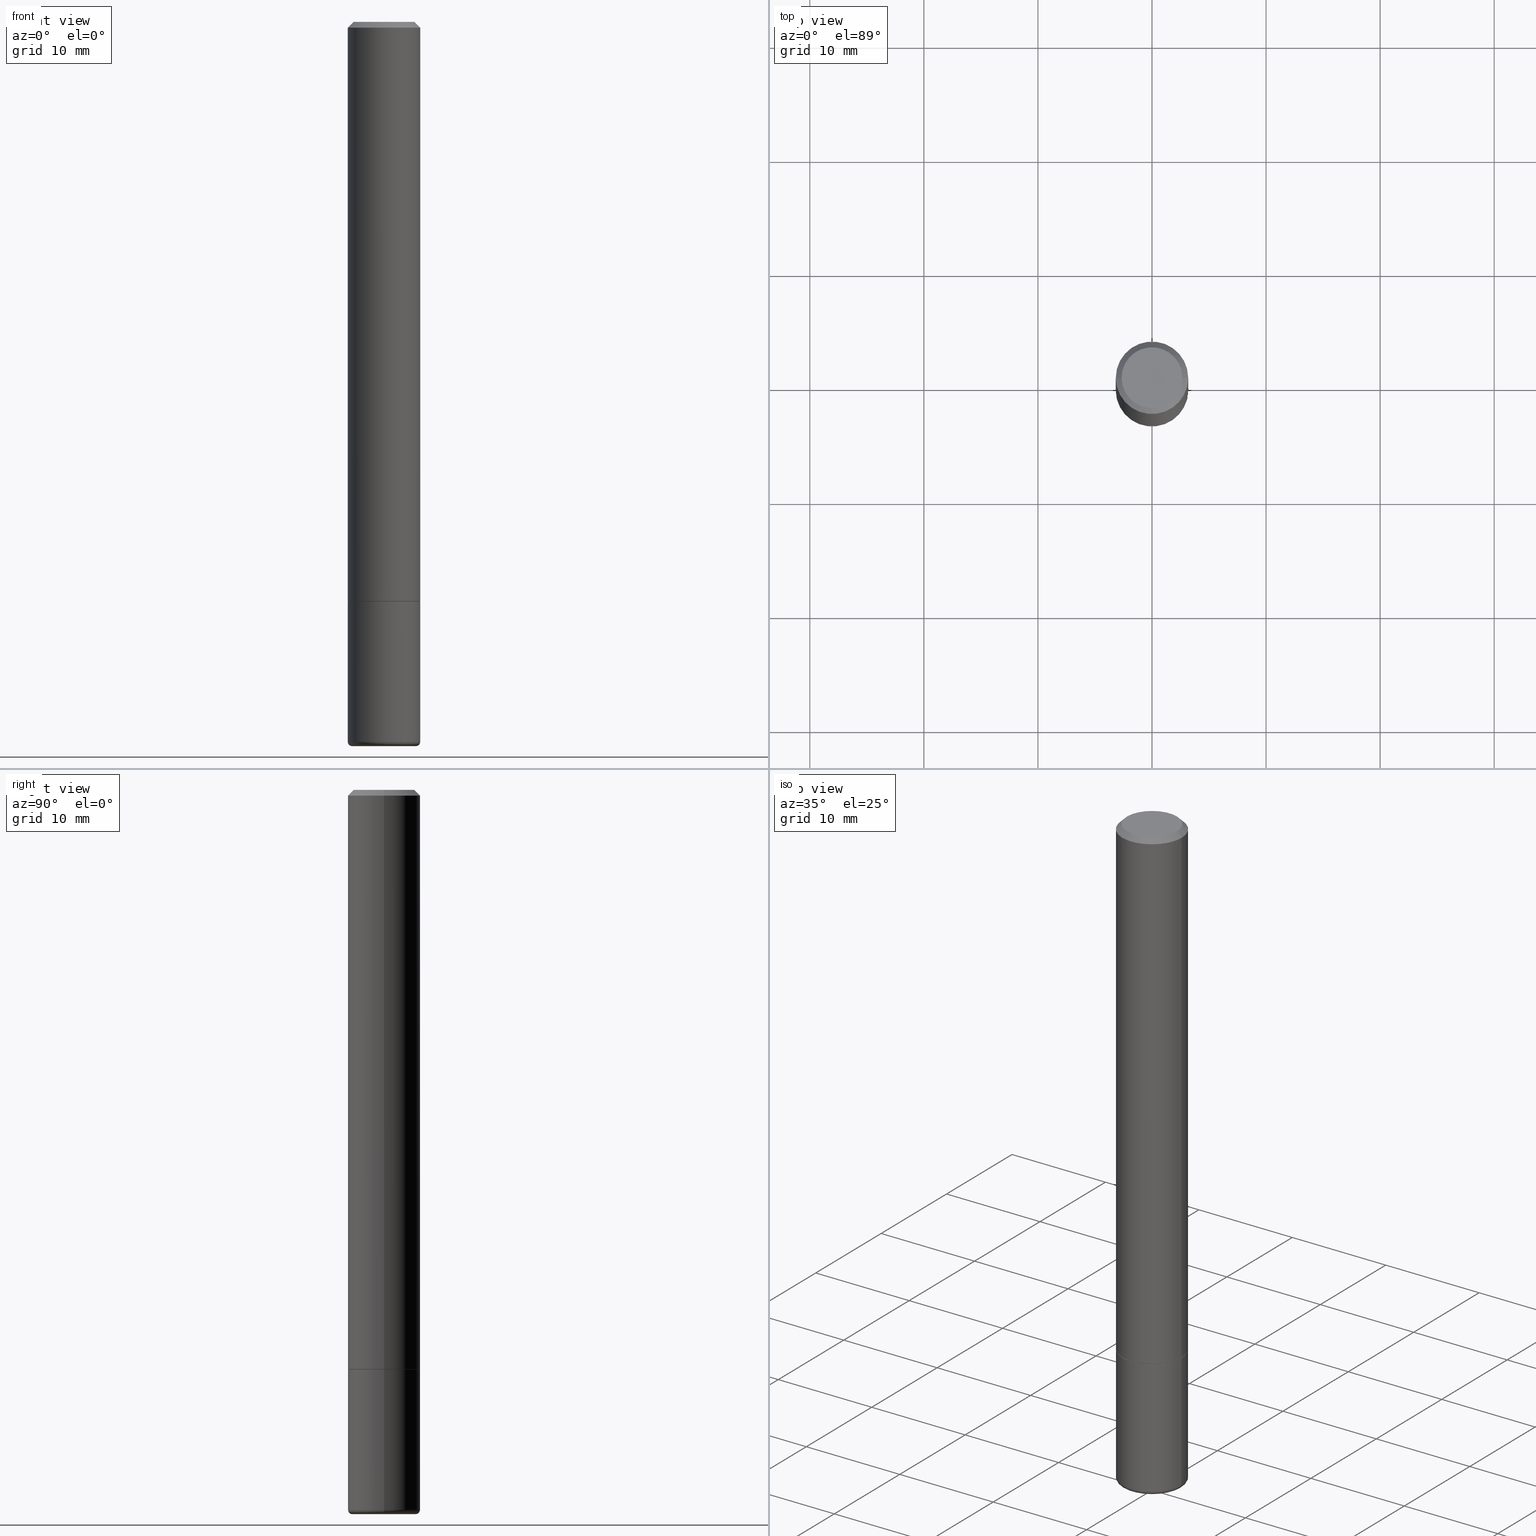
[diagram: canonical four-view strip — front | top / right | iso, engineering-drawing reading convention]
A machine part, canonical four-view strip (front | top / right | iso — engineering-drawing reading convention). The complete STEP part file that produces these views, byte-faithful:
ISO-10303-21;
HEADER;
FILE_DESCRIPTION (( 'STEP AP203' ),
    '1' );
FILE_NAME ('37012.STEP',
    '2024-03-01T18:40:47',
    ( '' ),
    ( '' ),
    'SwSTEP 2.0',
    'SolidWorks 2023',
    '' );
FILE_SCHEMA (( 'CONFIG_CONTROL_DESIGN' ));
ENDSEC;

DATA;
#1 = CALENDAR_DATE ( 2024, 1, 3 ) ;
#2 = FACE_OUTER_BOUND ( 'NONE', #391, .T. ) ;
#3 = VERTEX_POINT ( 'NONE', #236 ) ;
#4 = EDGE_CURVE ( 'NONE', #111, #93, #13, .T. ) ;
#5 = CARTESIAN_POINT ( 'NONE',  ( -0.1100000000000000006, -7.867629522548422746E-15, -2.500000000000000000 ) ) ;
#6 = CIRCLE ( 'NONE', #165, 0.01500000000000012955 ) ;
#7 = AXIS2_PLACEMENT_3D ( 'NONE', #327, #154, #319 ) ;
#8 = FACE_OUTER_BOUND ( 'NONE', #328, .T. ) ;
#9 = ORIENTED_EDGE ( 'NONE', *, *, #354, .F. ) ;
#10 = EDGE_CURVE ( 'NONE', #132, #158, #53, .T. ) ;
#11 = FACE_OUTER_BOUND ( 'NONE', #38, .T. ) ;
#12 = ORIENTED_EDGE ( 'NONE', *, *, #4, .T. ) ;
#13 = CIRCLE ( 'NONE', #52, 0.1250000000000000000 ) ;
#14 = LOCAL_TIME ( 13, 40, 47.00000000000000000, #275 ) ;
#15 = CIRCLE ( 'NONE', #63, 0.1250000000000000000 ) ;
#16 = DATE_AND_TIME ( #306, #215 ) ;
#17 = ORIENTED_EDGE ( 'NONE', *, *, #179, .F. ) ;
#18 = APPLICATION_PROTOCOL_DEFINITION ( 'international standard', 'config_control_design', 1994, #366 ) ;
#19 = CARTESIAN_POINT ( 'NONE',  ( 0.1100000000000000006, -9.496829241653354912E-15, -2.500000000000000000 ) ) ;
#20 = DIRECTION ( 'NONE',  ( 2.438088387897960049E-29, -3.491481338843145188E-15, -1.000000000000000000 ) ) ;
#21 = AXIS2_PLACEMENT_3D ( 'NONE', #312, #279, #208 ) ;
#22 = DIRECTION ( 'NONE',  ( 7.105427357601001859E-15, 1.000000000000000000, -3.491481338843145583E-15 ) ) ;
#23 = MECHANICAL_CONTEXT ( 'NONE', #366, 'mechanical' ) ;
#24 = DIRECTION ( 'NONE',  ( -1.000000000000000000, 6.982962677686265922E-15, -4.876176775795935793E-29 ) ) ;
#25 = ORIENTED_EDGE ( 'NONE', *, *, #43, .T. ) ;
#26 = DATE_TIME_ROLE ( 'creation_date' ) ;
#27 = CARTESIAN_POINT ( 'NONE',  ( 4.890937612370273194E-29, -6.982962677686291165E-15, -2.000000000000000000 ) ) ;
#28 = CONICAL_SURFACE ( 'NONE', #321, 0.1249999999999999861, 0.7853981633974471688 ) ;
#29 = ORIENTED_EDGE ( 'NONE', *, *, #4, .F. ) ;
#30 = DIRECTION ( 'NONE',  ( -2.445468806185136597E-29, 3.491481338843145583E-15, 1.000000000000000000 ) ) ;
#31 = EDGE_LOOP ( 'NONE', ( #96, #385, #168, #266 ) ) ;
#32 = LINE ( 'NONE', #163, #126 ) ;
#33 = DIRECTION ( 'NONE',  ( -2.445468806185136877E-29, 3.491481338843145188E-15, 1.000000000000000000 ) ) ;
#34 = VECTOR ( 'NONE', #372, 39.37007874015748143 ) ;
#35 = LOCAL_TIME ( 13, 40, 47.00000000000000000, #142 ) ;
#36 = DIRECTION ( 'NONE',  ( 1.000000000000000000, -6.982962677686264344E-15, 0.000000000000000000 ) ) ;
#37 = DESIGN_CONTEXT ( 'detailed design', #298, 'design' ) ;
#38 = EDGE_LOOP ( 'NONE', ( #25, #364, #9, #17 ) ) ;
#39 = CALENDAR_DATE ( 2024, 1, 3 ) ;
#40 = EDGE_LOOP ( 'NONE', ( #136, #141, #177, #188 ) ) ;
#41 = CIRCLE ( 'NONE', #156, 0.1049999999999999406 ) ;
#42 = DIRECTION ( 'NONE',  ( -2.445468806185136597E-29, 3.491481338843145583E-15, 1.000000000000000000 ) ) ;
#43 = EDGE_CURVE ( 'NONE', #393, #330, #198, .T. ) ;
#44 = ORIENTED_EDGE ( 'NONE', *, *, #127, .F. ) ;
#45 =( LENGTH_UNIT ( ) NAMED_UNIT ( * ) SI_UNIT ( $, .METRE. ) );
#46 = ORIENTED_EDGE ( 'NONE', *, *, #10, .F. ) ;
#47 = AXIS2_PLACEMENT_3D ( 'NONE', #379, #408, #339 ) ;
#48 = PRODUCT_RELATED_PRODUCT_CATEGORY ( 'detail', '', ( #311 ) ) ;
#49 = FACE_OUTER_BOUND ( 'NONE', #143, .T. ) ;
#50 = DIRECTION ( 'NONE',  ( -2.445468806185136597E-29, 3.491481338843145583E-15, 1.000000000000000000 ) ) ;
#51 = LINE ( 'NONE', #374, #34 ) ;
#52 = AXIS2_PLACEMENT_3D ( 'NONE', #77, #342, #149 ) ;
#53 = CIRCLE ( 'NONE', #268, 0.1049999999999999406 ) ;
#54 = AXIS2_PLACEMENT_3D ( 'NONE', #204, #304, #36 ) ;
#55 = CARTESIAN_POINT ( 'NONE',  ( -1.670162262936351711E-45, 2.384549072608715520E-31, 6.829619984160658046E-17 ) ) ;
#56 = CARTESIAN_POINT ( 'NONE',  ( 0.1049999999999999406, -8.238720831321571714E-16, 6.829619984161202853E-17 ) ) ;
#57 = PERSON_AND_ORGANIZATION_ROLE ( 'creator' ) ;
#58 = CARTESIAN_POINT ( 'NONE',  ( 4.890937612370273194E-29, -6.982962677686291165E-15, -2.000000000000000000 ) ) ;
#59 = ORIENTED_EDGE ( 'NONE', *, *, #326, .F. ) ;
#60 = PERSON_AND_ORGANIZATION ( #171, #371 ) ;
#61 = ADVANCED_FACE ( 'NONE', ( #150 ), #182, .T. ) ;
#62 = PLANE ( 'NONE',  #315 ) ;
#63 = AXIS2_PLACEMENT_3D ( 'NONE', #58, #381, #265 ) ;
#64 = VERTEX_POINT ( 'NONE', #19 ) ;
#65 = LINE ( 'NONE', #358, #333 ) ;
#66 = EDGE_CURVE ( 'NONE', #192, #297, #413, .T. ) ;
#67 = LINE ( 'NONE', #187, #380 ) ;
#68 = CC_DESIGN_PERSON_AND_ORGANIZATION_ASSIGNMENT ( #412, #416, ( #145 ) ) ;
#69 = DIRECTION ( 'NONE',  ( -0.7071067811865466846, 2.468850131082247989E-15, -0.7071067811865483499 ) ) ;
#70 = ORIENTED_EDGE ( 'NONE', *, *, #66, .T. ) ;
#71 = AXIS2_PLACEMENT_3D ( 'NONE', #131, #295, #160 ) ;
#72 = DIRECTION ( 'NONE',  ( 2.445468806185136597E-29, -3.491481338843145583E-15, -1.000000000000000000 ) ) ;
#73 = VERTEX_POINT ( 'NONE', #276 ) ;
#74 = VERTEX_POINT ( 'NONE', #313 ) ;
#75 = EDGE_CURVE ( 'NONE', #308, #73, #82, .T. ) ;
#76 = DIRECTION ( 'NONE',  ( 1.000000000000000000, -6.982962677686265922E-15, 4.876176775795935793E-29 ) ) ;
#77 = CARTESIAN_POINT ( 'NONE',  ( 4.890937612370273194E-29, -6.982962677686291165E-15, -2.000000000000000000 ) ) ;
#78 = AXIS2_PLACEMENT_3D ( 'NONE', #283, #167, #24 ) ;
#79 = EDGE_CURVE ( 'NONE', #73, #308, #88, .T. ) ;
#80 = CALENDAR_DATE ( 2024, 1, 3 ) ;
#81 = CARTESIAN_POINT ( 'NONE',  ( 0.000000000000000000, 0.000000000000000000, 0.000000000000000000 ) ) ;
#82 = CIRCLE ( 'NONE', #377, 0.1250000000000000000 ) ;
#83 = AXIS2_PLACEMENT_3D ( 'NONE', #146, #288, #116 ) ;
#84 = FACE_OUTER_BOUND ( 'NONE', #151, .T. ) ;
#85 = DIRECTION ( 'NONE',  ( -2.445468806185136597E-29, 3.491481338843145583E-15, 1.000000000000000000 ) ) ;
#86 = FACE_OUTER_BOUND ( 'NONE', #205, .T. ) ;
#87 = PERSON_AND_ORGANIZATION ( #171, #371 ) ;
#88 = CIRCLE ( 'NONE', #140, 0.1250000000000000000 ) ;
#89 = VECTOR ( 'NONE', #337, 39.37007874015748143 ) ;
#90 = LINE ( 'NONE', #214, #270 ) ;
#91 = LINE ( 'NONE', #124, #89 ) ;
#92 = FACE_OUTER_BOUND ( 'NONE', #258, .T. ) ;
#93 = VERTEX_POINT ( 'NONE', #370 ) ;
#94 = CC_DESIGN_DATE_AND_TIME_ASSIGNMENT ( #346, #26, ( #249 ) ) ;
#95 = PLANE ( 'NONE',  #78 ) ;
#96 = ORIENTED_EDGE ( 'NONE', *, *, #79, .T. ) ;
#97 = CARTESIAN_POINT ( 'NONE',  ( 4.890937612370273194E-29, -6.982962677686291165E-15, -2.000000000000000000 ) ) ;
#98 = APPROVAL_PERSON_ORGANIZATION ( #194, #332, #137 ) ;
#99 = ORIENTED_EDGE ( 'NONE', *, *, #305, .T. ) ;
#100 = DIRECTION ( 'NONE',  ( 1.000000000000000000, -6.982962677686270655E-15, 0.000000000000000000 ) ) ;
#101 = ORIENTED_EDGE ( 'NONE', *, *, #341, .T. ) ;
#102 = DATE_TIME_ROLE ( 'classification_date' ) ;
#103 = DIRECTION ( 'NONE',  ( -0.7071067811866078578, 7.493145998870571886E-15, 0.7071067811864871766 ) ) ;
#104 = EDGE_LOOP ( 'NONE', ( #273, #46, #99, #70 ) ) ;
#105 = FACE_OUTER_BOUND ( 'NONE', #104, .T. ) ;
#106 = AXIS2_PLACEMENT_3D ( 'NONE', #402, #235, #76 ) ;
#107 = ORIENTED_EDGE ( 'NONE', *, *, #365, .F. ) ;
#108 = CARTESIAN_POINT ( 'NONE',  ( 4.890937612370279289E-31, -6.982962677686299005E-17, -0.02000000000000002470 ) ) ;
#109 = ORIENTED_EDGE ( 'NONE', *, *, #148, .F. ) ;
#110 = EDGE_CURVE ( 'NONE', #324, #308, #6, .T. ) ;
#111 = VERTEX_POINT ( 'NONE', #251 ) ;
#112 = APPROVAL_PERSON_ORGANIZATION ( #60, #389, #282 ) ;
#113 = PRODUCT_DEFINITION_FORMATION_WITH_SPECIFIED_SOURCE ( 'ANY', '', #311, .NOT_KNOWN. ) ;
#114 = CARTESIAN_POINT ( 'NONE',  ( 0.000000000000000000, 0.000000000000000000, 0.000000000000000000 ) ) ;
#115 = DIRECTION ( 'NONE',  ( -2.445468806185136597E-29, 3.491481338843145583E-15, 1.000000000000000000 ) ) ;
#116 = DIRECTION ( 'NONE',  ( 1.000000000000000000, 0.000000000000000000, 0.000000000000000000 ) ) ;
#117 = CARTESIAN_POINT ( 'NONE',  ( 4.890937612370273194E-29, -6.982962677686291165E-15, -2.000000000000000000 ) ) ;
#118 = CLOSED_SHELL ( 'NONE', ( #61, #259, #303, #121, #247, #242 ) ) ;
#119 = VECTOR ( 'NONE', #103, 39.37007874015748143 ) ;
#120 = PLANE ( 'NONE',  #400 ) ;
#121 = ADVANCED_FACE ( 'NONE', ( #86 ), #212, .T. ) ;
#122 = DIRECTION ( 'NONE',  ( 1.000000000000000000, -6.982962677686270655E-15, 0.000000000000000000 ) ) ;
#123 = CARTESIAN_POINT ( 'NONE',  ( 7.332110811570575313E-16, 0.1049999999999999406, -3.324574406577267327E-16 ) ) ;
#124 = CARTESIAN_POINT ( 'NONE',  ( -0.1250000000000001110, 8.881784197001260212E-16, -6.148668862818637832E-30 ) ) ;
#125 = CLOSED_SHELL ( 'NONE', ( #262, #373, #269, #378, #164, #169, #368, #144 ) ) ;
#126 = VECTOR ( 'NONE', #69, 39.37007874015748143 ) ;
#127 = EDGE_CURVE ( 'NONE', #3, #74, #300, .T. ) ;
#128 = DIRECTION ( 'NONE',  ( -2.445468806185136597E-29, 3.491481338843145583E-15, 1.000000000000000000 ) ) ;
#129 = FACE_OUTER_BOUND ( 'NONE', #394, .T. ) ;
#130 = ORIENTED_EDGE ( 'NONE', *, *, #326, .T. ) ;
#131 = CARTESIAN_POINT ( 'NONE',  ( 6.076989983370064174E-29, -8.676331127025216680E-15, -2.484999999999999876 ) ) ;
#132 = VERTEX_POINT ( 'NONE', #244 ) ;
#133 = CARTESIAN_POINT ( 'NONE',  ( 6.113672015462842613E-29, -8.728703347107864943E-15, -2.500000000000000000 ) ) ;
#134 = CONICAL_SURFACE ( 'NONE', #343, 0.1249999999999999861, 0.7853981633974471688 ) ;
#135 = DIRECTION ( 'NONE',  ( -2.445468806185136597E-29, 3.491481338843145583E-15, 1.000000000000000000 ) ) ;
#136 = ORIENTED_EDGE ( 'NONE', *, *, #110, .F. ) ;
#137 = APPROVAL_ROLE ( '' ) ;
#138 = EDGE_CURVE ( 'NONE', #308, #111, #90, .T. ) ;
#139 = ORIENTED_EDGE ( 'NONE', *, *, #127, .T. ) ;
#140 = AXIS2_PLACEMENT_3D ( 'NONE', #316, #115, #122 ) ;
#141 = ORIENTED_EDGE ( 'NONE', *, *, #227, .T. ) ;
#142 = COORDINATED_UNIVERSAL_TIME_OFFSET ( 5, 0, .BEHIND. ) ;
#143 = EDGE_LOOP ( 'NONE', ( #261, #139, #228, #107 ) ) ;
#144 = ADVANCED_FACE ( 'NONE', ( #277 ), #120, .F. ) ;
#145 = SECURITY_CLASSIFICATION ( '', '', #335 ) ;
#146 = CARTESIAN_POINT ( 'NONE',  ( 0.000000000000000000, 0.000000000000000000, 0.000000000000000000 ) ) ;
#147 = CARTESIAN_POINT ( 'NONE',  ( 0.000000000000000000, 0.000000000000000000, 0.000000000000000000 ) ) ;
#148 = EDGE_CURVE ( 'NONE', #74, #393, #51, .T. ) ;
#149 = DIRECTION ( 'NONE',  ( 1.000000000000000000, -6.982962677686270655E-15, 0.000000000000000000 ) ) ;
#150 = FACE_OUTER_BOUND ( 'NONE', #31, .T. ) ;
#151 = EDGE_LOOP ( 'NONE', ( #415, #287, #336, #173 ) ) ;
#152 = PERSON_AND_ORGANIZATION_ROLE ( 'design_supplier' ) ;
#153 = CC_DESIGN_PERSON_AND_ORGANIZATION_ASSIGNMENT ( #159, #57, ( #249 ) ) ;
#154 = DIRECTION ( 'NONE',  ( -2.445468806185136597E-29, 3.491481338843145583E-15, 1.000000000000000000 ) ) ;
#155 = APPROVAL_STATUS ( 'not_yet_approved' ) ;
#156 = AXIS2_PLACEMENT_3D ( 'NONE', #200, #30, #255 ) ;
#157 = FACE_OUTER_BOUND ( 'NONE', #40, .T. ) ;
#158 = VERTEX_POINT ( 'NONE', #56 ) ;
#159 = PERSON_AND_ORGANIZATION ( #171, #371 ) ;
#160 = DIRECTION ( 'NONE',  ( 1.000000000000000000, -6.982962677686262766E-15, 4.883557194083111780E-29 ) ) ;
#161 = ORIENTED_EDGE ( 'NONE', *, *, #222, .T. ) ;
#162 = SHAPE_DEFINITION_REPRESENTATION ( #246, #213 ) ;
#163 = CARTESIAN_POINT ( 'NONE',  ( -0.1249999999999999861, 8.030407079339202378E-16, -0.02000000000000002470 ) ) ;
#164 = ADVANCED_FACE ( 'NONE', ( #84 ), #317, .T. ) ;
#165 = AXIS2_PLACEMENT_3D ( 'NONE', #250, #22, #176 ) ;
#166 = LOCAL_TIME ( 13, 40, 47.00000000000000000, #189 ) ;
#167 = DIRECTION ( 'NONE',  ( 2.438088387897960049E-29, -3.491481338843145188E-15, -1.000000000000000000 ) ) ;
#168 = ORIENTED_EDGE ( 'NONE', *, *, #231, .F. ) ;
#169 = ADVANCED_FACE ( 'NONE', ( #49 ), #338, .T. ) ;
#170 = CC_DESIGN_APPROVAL ( #345, ( #249 ) ) ;
#171 = PERSON ( 'UNSPECIFIED', 'UNSPECIFIED', 'UNSPECIFIED', ('UNSPECIFIED'), ('UNSPECIFIED'), ('UNSPECIFIED') ) ;
#172 = COORDINATED_UNIVERSAL_TIME_OFFSET ( 5, 0, .BEHIND. ) ;
#173 = ORIENTED_EDGE ( 'NONE', *, *, #66, .F. ) ;
#174 = AXIS2_PLACEMENT_3D ( 'NONE', #133, #390, #100 ) ;
#175 = APPROVAL_ROLE ( '' ) ;
#176 = DIRECTION ( 'NONE',  ( -1.000000000000000000, 7.105427357600994759E-15, 0.000000000000000000 ) ) ;
#177 = ORIENTED_EDGE ( 'NONE', *, *, #301, .T. ) ;
#178 = DIRECTION ( 'NONE',  ( 1.000000000000000000, -6.982962677686266711E-15, 4.876176775795935793E-29 ) ) ;
#179 = EDGE_CURVE ( 'NONE', #393, #297, #67, .T. ) ;
#180 = AXIS2_PLACEMENT_3D ( 'NONE', #147, #310, #178 ) ;
#181 = AXIS2_PLACEMENT_3D ( 'NONE', #350, #264, #218 ) ;
#182 = CYLINDRICAL_SURFACE ( 'NONE', #180, 0.1250000000000000000 ) ;
#183 = EDGE_CURVE ( 'NONE', #74, #3, #190, .T. ) ;
#184 =( NAMED_UNIT ( * ) PLANE_ANGLE_UNIT ( ) SI_UNIT ( $, .RADIAN. ) );
#185 = DIRECTION ( 'NONE',  ( -1.000000000000000000, 6.982962677686265922E-15, -4.876176775795935793E-29 ) ) ;
#186 =( CONVERSION_BASED_UNIT ( 'INCH', #309 ) LENGTH_UNIT ( ) NAMED_UNIT ( #230 ) );
#187 = CARTESIAN_POINT ( 'NONE',  ( 0.1250000000000001110, -8.728703347107841277E-16, 6.095220969744924646E-30 ) ) ;
#188 = ORIENTED_EDGE ( 'NONE', *, *, #75, .F. ) ;
#189 = COORDINATED_UNIVERSAL_TIME_OFFSET ( 5, 0, .BEHIND. ) ;
#190 = CIRCLE ( 'NONE', #199, 0.1239999999999999991 ) ;
#191 = CARTESIAN_POINT ( 'NONE',  ( -0.1249999999999999861, 8.030407079339202378E-16, -0.02000000000000002470 ) ) ;
#192 = VERTEX_POINT ( 'NONE', #191 ) ;
#193 = DIRECTION ( 'NONE',  ( -2.445468806185136877E-29, 3.491481338843145188E-15, 1.000000000000000000 ) ) ;
#194 = PERSON_AND_ORGANIZATION ( #171, #371 ) ;
#195 = DIRECTION ( 'NONE',  ( 1.000000000000000000, -6.982962677686262766E-15, 0.000000000000000000 ) ) ;
#196 = UNCERTAINTY_MEASURE_WITH_UNIT (LENGTH_MEASURE( 1.000000000000000082E-05 ), #186, 'distance_accuracy_value', 'NONE');
#197 = ORIENTED_EDGE ( 'NONE', *, *, #301, .F. ) ;
#198 = CIRCLE ( 'NONE', #21, 0.1250000000000002498 ) ;
#199 = AXIS2_PLACEMENT_3D ( 'NONE', #27, #128, #195 ) ;
#200 = CARTESIAN_POINT ( 'NONE',  ( -1.670162262936351711E-45, 2.384549072608715520E-31, 6.829619984160658046E-17 ) ) ;
#201 = ORIENTED_EDGE ( 'NONE', *, *, #227, .F. ) ;
#202 = DIRECTION ( 'NONE',  ( 1.000000000000000000, -6.982962677686266711E-15, 0.000000000000000000 ) ) ;
#203 = AXIS2_PLACEMENT_3D ( 'NONE', #248, #85, #323 ) ;
#204 = CARTESIAN_POINT ( 'NONE',  ( 4.888492143564087591E-29, -6.979471196347447369E-15, -1.998999999999999888 ) ) ;
#205 = EDGE_LOOP ( 'NONE', ( #281, #388, #399, #29 ) ) ;
#206 = PERSON_AND_ORGANIZATION_ROLE ( 'creator' ) ;
#207 = APPLICATION_PROTOCOL_DEFINITION ( 'international standard', 'config_control_design', 1994, #298 ) ;
#208 = DIRECTION ( 'NONE',  ( 1.000000000000000000, -6.982962677686264344E-15, 0.000000000000000000 ) ) ;
#209 = CIRCLE ( 'NONE', #353, 0.1249999999999999861 ) ;
#210 = EDGE_CURVE ( 'NONE', #73, #93, #65, .T. ) ;
#211 = DIRECTION ( 'NONE',  ( -2.445468806185136597E-29, 3.491481338843145583E-15, 1.000000000000000000 ) ) ;
#212 = CYLINDRICAL_SURFACE ( 'NONE', #47, 0.1250000000000000000 ) ;
#213 = ADVANCED_BREP_SHAPE_REPRESENTATION ( '37012', ( #299, #302, #83 ), #285 ) ;
#214 = CARTESIAN_POINT ( 'NONE',  ( -0.1250000000000000000, 8.881784197001252323E-16, -6.148668862818632227E-30 ) ) ;
#215 = LOCAL_TIME ( 13, 40, 47.00000000000000000, #172 ) ;
#216 = COORDINATED_UNIVERSAL_TIME_OFFSET ( 5, 0, .BEHIND. ) ;
#217 = DIRECTION ( 'NONE',  ( 1.000000000000000000, -6.982962677686265922E-15, 4.881622206245865394E-29 ) ) ;
#218 = DIRECTION ( 'NONE',  ( 1.000000000000000000, -6.982962677686262766E-15, 0.000000000000000000 ) ) ;
#219 = ORIENTED_EDGE ( 'NONE', *, *, #183, .T. ) ;
#220 = APPROVAL_STATUS ( 'not_yet_approved' ) ;
#221 = CARTESIAN_POINT ( 'NONE',  ( 0.1249999999999999861, -9.273918764983043491E-16, -0.02000000000000002470 ) ) ;
#222 = EDGE_CURVE ( 'NONE', #158, #132, #41, .T. ) ;
#223 = LOCAL_TIME ( 13, 40, 47.00000000000000000, #216 ) ;
#224 = DIRECTION ( 'NONE',  ( 2.438088387897960049E-29, -3.491481338843145188E-15, -1.000000000000000000 ) ) ;
#225 = ORIENTED_EDGE ( 'NONE', *, *, #183, .F. ) ;
#226 = CARTESIAN_POINT ( 'NONE',  ( -0.1250000000000002498, -2.636471991862024185E-15, -1.998999999999999888 ) ) ;
#227 = EDGE_CURVE ( 'NONE', #324, #64, #263, .T. ) ;
#228 = ORIENTED_EDGE ( 'NONE', *, *, #148, .T. ) ;
#229 = CARTESIAN_POINT ( 'NONE',  ( 0.1100000000000000006, -9.444457021570706649E-15, -2.484999999999999876 ) ) ;
#230 = DIMENSIONAL_EXPONENTS ( 1.000000000000000000, 0.000000000000000000, 0.000000000000000000, 0.000000000000000000, 0.000000000000000000, 0.000000000000000000, 0.000000000000000000 ) ;
#231 = EDGE_CURVE ( 'NONE', #93, #111, #15, .T. ) ;
#232 = ORIENTED_EDGE ( 'NONE', *, *, #305, .F. ) ;
#233 = AXIS2_PLACEMENT_3D ( 'NONE', #229, #347, #359 ) ;
#234 = CARTESIAN_POINT ( 'NONE',  ( 4.890937612370279289E-31, -6.982962677686299005E-17, -0.02000000000000002470 ) ) ;
#235 = DIRECTION ( 'NONE',  ( -2.438088387897960049E-29, 3.491481338843145188E-15, 1.000000000000000000 ) ) ;
#236 = CARTESIAN_POINT ( 'NONE',  ( -0.1239999999999999991, -6.096591230995543750E-15, -2.000000000000000000 ) ) ;
#237 = CC_DESIGN_PERSON_AND_ORGANIZATION_ASSIGNMENT ( #256, #152, ( #113 ) ) ;
#238 = AXIS2_PLACEMENT_3D ( 'NONE', #375, #403, #410 ) ;
#239 = CIRCLE ( 'NONE', #174, 0.1100000000000000006 ) ;
#240 = DIRECTION ( 'NONE',  ( -2.445468806185136597E-29, 3.491481338843145583E-15, 1.000000000000000000 ) ) ;
#241 = DIRECTION ( 'NONE',  ( 1.000000000000000000, -6.982962677686270655E-15, 0.000000000000000000 ) ) ;
#242 = ADVANCED_FACE ( 'NONE', ( #2 ), #95, .T. ) ;
#243 = DATE_AND_TIME ( #404, #14 ) ;
#244 = CARTESIAN_POINT ( 'NONE',  ( -0.1049999999999999406, 7.681258945454890818E-16, 6.829619984160132961E-17 ) ) ;
#245 = AXIS2_PLACEMENT_3D ( 'NONE', #114, #240, #296 ) ;
#246 = PRODUCT_DEFINITION_SHAPE ( 'NONE', 'NONE',  #249 ) ;
#247 = ADVANCED_FACE ( 'NONE', ( #157 ), #253, .T. ) ;
#248 = CARTESIAN_POINT ( 'NONE',  ( 4.890937612370273194E-29, -6.982962677686291165E-15, -2.000000000000000000 ) ) ;
#249 = PRODUCT_DEFINITION ( 'UNKNOWN', '', #113, #37 ) ;
#250 = CARTESIAN_POINT ( 'NONE',  ( -0.1100000000000000006, -7.894734117689105781E-15, -2.484999999999999876 ) ) ;
#251 = CARTESIAN_POINT ( 'NONE',  ( -0.1250000000000000000, -6.941468482655628296E-15, -2.000000000000000000 ) ) ;
#252 = AXIS2_PLACEMENT_3D ( 'NONE', #117, #50, #274 ) ;
#253 = TOROIDAL_SURFACE ( 'NONE', #71, 0.1100000000000000006, 0.01500000000000012088 ) ;
#254 =( NAMED_UNIT ( * ) SI_UNIT ( $, .STERADIAN. ) SOLID_ANGLE_UNIT ( ) );
#255 = DIRECTION ( 'NONE',  ( 1.000000000000000000, -6.982962677686265922E-15, 4.881622206245865394E-29 ) ) ;
#256 = PERSON_AND_ORGANIZATION ( #171, #371 ) ;
#257 = DIRECTION ( 'NONE',  ( 2.445468806185136597E-29, -3.491481338843145583E-15, -1.000000000000000000 ) ) ;
#258 = EDGE_LOOP ( 'NONE', ( #219, #290, #331, #109 ) ) ;
#259 = ADVANCED_FACE ( 'NONE', ( #8 ), #401, .T. ) ;
#260 = DIRECTION ( 'NONE',  ( -1.000000000000000000, 6.982962677686266711E-15, 0.000000000000000000 ) ) ;
#261 = ORIENTED_EDGE ( 'NONE', *, *, #291, .F. ) ;
#262 = ADVANCED_FACE ( 'NONE', ( #92 ), #395, .T. ) ;
#263 = CIRCLE ( 'NONE', #7, 0.1100000000000000006 ) ;
#264 = DIRECTION ( 'NONE',  ( -2.445468806185136597E-29, 3.491481338843145583E-15, 1.000000000000000000 ) ) ;
#265 = DIRECTION ( 'NONE',  ( 1.000000000000000000, -6.982962677686270655E-15, 0.000000000000000000 ) ) ;
#266 = ORIENTED_EDGE ( 'NONE', *, *, #210, .F. ) ;
#267 = PLANE ( 'NONE',  #106 ) ;
#268 = AXIS2_PLACEMENT_3D ( 'NONE', #55, #344, #217 ) ;
#269 = ADVANCED_FACE ( 'NONE', ( #129 ), #134, .T. ) ;
#270 = VECTOR ( 'NONE', #280, 39.37007874015748143 ) ;
#271 = CYLINDRICAL_SURFACE ( 'NONE', #245, 0.1250000000000001110 ) ;
#272 = CC_DESIGN_APPROVAL ( #332, ( #145 ) ) ;
#273 = ORIENTED_EDGE ( 'NONE', *, *, #341, .F. ) ;
#274 = DIRECTION ( 'NONE',  ( 1.000000000000000000, -6.982962677686262766E-15, 0.000000000000000000 ) ) ;
#275 = COORDINATED_UNIVERSAL_TIME_OFFSET ( 5, 0, .BEHIND. ) ;
#276 = CARTESIAN_POINT ( 'NONE',  ( 0.1250000000000000555, -9.549201461736000019E-15, -2.484999999999999876 ) ) ;
#277 = FACE_OUTER_BOUND ( 'NONE', #360, .T. ) ;
#278 = CC_DESIGN_APPROVAL ( #389, ( #113 ) ) ;
#279 = DIRECTION ( 'NONE',  ( -2.445468806185136597E-29, 3.491481338843145583E-15, 1.000000000000000000 ) ) ;
#280 = DIRECTION ( 'NONE',  ( -2.445468806185136877E-29, 3.491481338843145188E-15, 1.000000000000000000 ) ) ;
#281 = ORIENTED_EDGE ( 'NONE', *, *, #138, .F. ) ;
#282 = APPROVAL_ROLE ( '' ) ;
#283 = CARTESIAN_POINT ( 'NONE',  ( 6.113672015462842613E-29, -8.728703347107864943E-15, -2.500000000000000000 ) ) ;
#284 = ORIENTED_EDGE ( 'NONE', *, *, #354, .T. ) ;
#285 =( GEOMETRIC_REPRESENTATION_CONTEXT ( 3 ) GLOBAL_UNCERTAINTY_ASSIGNED_CONTEXT ( ( #196 ) ) GLOBAL_UNIT_ASSIGNED_CONTEXT ( ( #186, #184, #254 ) ) REPRESENTATION_CONTEXT ( 'NONE', 'WORKASPACE' ) );
#286 = DATE_AND_TIME ( #1, #166 ) ;
#287 = ORIENTED_EDGE ( 'NONE', *, *, #365, .T. ) ;
#288 = DIRECTION ( 'NONE',  ( 0.000000000000000000, 0.000000000000000000, 1.000000000000000000 ) ) ;
#289 = CARTESIAN_POINT ( 'NONE',  ( 6.076989983370064174E-29, -8.676331127025216680E-15, -2.484999999999999876 ) ) ;
#290 = ORIENTED_EDGE ( 'NONE', *, *, #291, .T. ) ;
#291 = EDGE_CURVE ( 'NONE', #3, #330, #384, .T. ) ;
#292 = CARTESIAN_POINT ( 'NONE',  ( -0.1250000000000000555, -7.788152707325091448E-15, -2.484999999999999876 ) ) ;
#293 = APPROVAL_DATE_TIME ( #361, #332 ) ;
#294 = APPROVAL_PERSON_ORGANIZATION ( #383, #345, #175 ) ;
#295 = DIRECTION ( 'NONE',  ( -2.445468806185136597E-29, 3.491481338843145583E-15, 1.000000000000000000 ) ) ;
#296 = DIRECTION ( 'NONE',  ( 1.000000000000000000, -6.982962677686266711E-15, 4.876176775795935232E-29 ) ) ;
#297 = VERTEX_POINT ( 'NONE', #221 ) ;
#298 = APPLICATION_CONTEXT ( 'configuration controlled 3d designs of mechanical parts and assemblies' ) ;
#299 = MANIFOLD_SOLID_BREP ( 'Body-Move/Copy2[1]', #118 ) ;
#300 = CIRCLE ( 'NONE', #252, 0.1239999999999999991 ) ;
#301 = EDGE_CURVE ( 'NONE', #64, #73, #307, .T. ) ;
#302 = MANIFOLD_SOLID_BREP ( 'Body-Move/Copy2[2]', #125 ) ;
#303 = ADVANCED_FACE ( 'NONE', ( #325 ), #62, .F. ) ;
#304 = DIRECTION ( 'NONE',  ( -2.445468806185136597E-29, 3.491481338843145583E-15, 1.000000000000000000 ) ) ;
#305 = EDGE_CURVE ( 'NONE', #132, #192, #32, .T. ) ;
#306 = CALENDAR_DATE ( 2024, 1, 3 ) ;
#307 = CIRCLE ( 'NONE', #233, 0.01500000000000012955 ) ;
#308 = VERTEX_POINT ( 'NONE', #292 ) ;
#309 = LENGTH_MEASURE_WITH_UNIT ( LENGTH_MEASURE( 0.02539999999999999897 ), #45 );
#310 = DIRECTION ( 'NONE',  ( -2.445468806185136597E-29, 3.491481338843145583E-15, 1.000000000000000000 ) ) ;
#311 = PRODUCT ( '37012', '37012', '', ( #23 ) ) ;
#312 = CARTESIAN_POINT ( 'NONE',  ( 4.888492143564087591E-29, -6.979471196347447369E-15, -1.998999999999999888 ) ) ;
#313 = CARTESIAN_POINT ( 'NONE',  ( 0.1239999999999999991, -7.848850049719387701E-15, -2.000000000000000000 ) ) ;
#314 = CC_DESIGN_PERSON_AND_ORGANIZATION_ASSIGNMENT ( #87, #206, ( #113 ) ) ;
#315 = AXIS2_PLACEMENT_3D ( 'NONE', #97, #224, #355 ) ;
#316 = CARTESIAN_POINT ( 'NONE',  ( 6.076989983370064174E-29, -8.676331127025216680E-15, -2.484999999999999876 ) ) ;
#317 = CYLINDRICAL_SURFACE ( 'NONE', #352, 0.1250000000000001110 ) ;
#318 = APPROVAL_DATE_TIME ( #243, #345 ) ;
#319 = DIRECTION ( 'NONE',  ( 1.000000000000000000, -6.982962677686270655E-15, 0.000000000000000000 ) ) ;
#320 = EDGE_LOOP ( 'NONE', ( #225, #44 ) ) ;
#321 = AXIS2_PLACEMENT_3D ( 'NONE', #234, #72, #363 ) ;
#322 = PERSON_AND_ORGANIZATION_ROLE ( 'design_owner' ) ;
#323 = DIRECTION ( 'NONE',  ( 1.000000000000000000, -6.982962677686262766E-15, 0.000000000000000000 ) ) ;
#324 = VERTEX_POINT ( 'NONE', #5 ) ;
#325 = FACE_OUTER_BOUND ( 'NONE', #411, .T. ) ;
#326 = EDGE_CURVE ( 'NONE', #64, #324, #239, .T. ) ;
#327 = CARTESIAN_POINT ( 'NONE',  ( 6.113672015462842613E-29, -8.728703347107864943E-15, -2.500000000000000000 ) ) ;
#328 = EDGE_LOOP ( 'NONE', ( #130, #351, #348, #197 ) ) ;
#329 = CC_DESIGN_SECURITY_CLASSIFICATION ( #145, ( #113 ) ) ;
#330 = VERTEX_POINT ( 'NONE', #226 ) ;
#331 = ORIENTED_EDGE ( 'NONE', *, *, #43, .F. ) ;
#332 = APPROVAL ( #357, 'UNSPECIFIED' ) ;
#333 = VECTOR ( 'NONE', #33, 39.37007874015748143 ) ;
#334 = CC_DESIGN_DATE_AND_TIME_ASSIGNMENT ( #16, #102, ( #145 ) ) ;
#335 = SECURITY_CLASSIFICATION_LEVEL ( 'unclassified' ) ;
#336 = ORIENTED_EDGE ( 'NONE', *, *, #179, .T. ) ;
#337 = DIRECTION ( 'NONE',  ( -2.445468806185136877E-29, 3.491481338843145188E-15, 1.000000000000000000 ) ) ;
#338 = CONICAL_SURFACE ( 'NONE', #203, 0.1239999999999999991, 0.7853981633975336552 ) ;
#339 = DIRECTION ( 'NONE',  ( 1.000000000000000000, -6.982962677686266711E-15, 4.876176775795935793E-29 ) ) ;
#340 = CARTESIAN_POINT ( 'NONE',  ( 6.076989983370064174E-29, -8.676331127025216680E-15, -2.484999999999999876 ) ) ;
#341 = EDGE_CURVE ( 'NONE', #158, #297, #397, .T. ) ;
#342 = DIRECTION ( 'NONE',  ( -2.445468806185136597E-29, 3.491481338843145583E-15, 1.000000000000000000 ) ) ;
#343 = AXIS2_PLACEMENT_3D ( 'NONE', #392, #257, #260 ) ;
#344 = DIRECTION ( 'NONE',  ( -2.445468806185136597E-29, 3.491481338843145583E-15, 1.000000000000000000 ) ) ;
#345 = APPROVAL ( #220, 'UNSPECIFIED' ) ;
#346 = DATE_AND_TIME ( #80, #223 ) ;
#347 = DIRECTION ( 'NONE',  ( -6.982962677686266711E-15, -1.000000000000000000, 3.491481338843145583E-15 ) ) ;
#348 = ORIENTED_EDGE ( 'NONE', *, *, #79, .F. ) ;
#349 = CARTESIAN_POINT ( 'NONE',  ( 0.1250000000000002498, -7.852341531058232286E-15, -1.998999999999999888 ) ) ;
#350 = CARTESIAN_POINT ( 'NONE',  ( 4.890937612370273194E-29, -6.982962677686291165E-15, -2.000000000000000000 ) ) ;
#351 = ORIENTED_EDGE ( 'NONE', *, *, #110, .T. ) ;
#352 = AXIS2_PLACEMENT_3D ( 'NONE', #81, #211, #407 ) ;
#353 = AXIS2_PLACEMENT_3D ( 'NONE', #108, #42, #202 ) ;
#354 = EDGE_CURVE ( 'NONE', #297, #192, #209, .T. ) ;
#355 = DIRECTION ( 'NONE',  ( -1.000000000000000000, 6.982962677686265922E-15, -4.876176775795935793E-29 ) ) ;
#356 = ORIENTED_EDGE ( 'NONE', *, *, #222, .F. ) ;
#357 = APPROVAL_STATUS ( 'not_yet_approved' ) ;
#358 = CARTESIAN_POINT ( 'NONE',  ( 0.1250000000000000000, -8.728703347107833388E-16, 6.095220969744919741E-30 ) ) ;
#359 = DIRECTION ( 'NONE',  ( 1.000000000000000000, -6.982962677686207546E-15, 0.000000000000000000 ) ) ;
#360 = EDGE_LOOP ( 'NONE', ( #418, #161 ) ) ;
#361 = DATE_AND_TIME ( #39, #35 ) ;
#362 = CIRCLE ( 'NONE', #54, 0.1250000000000002498 ) ;
#363 = DIRECTION ( 'NONE',  ( -1.000000000000000000, 6.982962677686266711E-15, 0.000000000000000000 ) ) ;
#364 = ORIENTED_EDGE ( 'NONE', *, *, #409, .T. ) ;
#365 = EDGE_CURVE ( 'NONE', #330, #393, #362, .T. ) ;
#366 = APPLICATION_CONTEXT ( 'configuration controlled 3d designs of mechanical parts and assemblies' ) ;
#367 = CARTESIAN_POINT ( 'NONE',  ( 0.1249999999999999861, -9.273918764983043491E-16, -0.02000000000000002470 ) ) ;
#368 = ADVANCED_FACE ( 'NONE', ( #396 ), #267, .F. ) ;
#369 = DIRECTION ( 'NONE',  ( 0.7071067811865466846, -7.319954787623252890E-15, -0.7071067811865483499 ) ) ;
#370 = CARTESIAN_POINT ( 'NONE',  ( 0.1250000000000000000, -7.855833012397075293E-15, -2.000000000000000000 ) ) ;
#371 = ORGANIZATION ( 'UNSPECIFIED', 'UNSPECIFIED', '' ) ;
#372 = DIRECTION ( 'NONE',  ( 0.7071067811866078578, -2.468850131082888544E-15, 0.7071067811864871766 ) ) ;
#373 = ADVANCED_FACE ( 'NONE', ( #11 ), #271, .T. ) ;
#374 = CARTESIAN_POINT ( 'NONE',  ( 0.1239999999999999991, -7.848850049719387701E-15, -2.000000000000000000 ) ) ;
#375 = CARTESIAN_POINT ( 'NONE',  ( 4.890937612370279289E-31, -6.982962677686299005E-17, -0.02000000000000002470 ) ) ;
#376 = APPROVAL_DATE_TIME ( #286, #389 ) ;
#377 = AXIS2_PLACEMENT_3D ( 'NONE', #340, #405, #241 ) ;
#378 = ADVANCED_FACE ( 'NONE', ( #105 ), #28, .T. ) ;
#379 = CARTESIAN_POINT ( 'NONE',  ( 0.000000000000000000, 0.000000000000000000, 0.000000000000000000 ) ) ;
#380 = VECTOR ( 'NONE', #193, 39.37007874015748143 ) ;
#381 = DIRECTION ( 'NONE',  ( -2.445468806185136597E-29, 3.491481338843145583E-15, 1.000000000000000000 ) ) ;
#382 = ORIENTED_EDGE ( 'NONE', *, *, #231, .T. ) ;
#383 = PERSON_AND_ORGANIZATION ( #171, #371 ) ;
#384 = LINE ( 'NONE', #387, #119 ) ;
#385 = ORIENTED_EDGE ( 'NONE', *, *, #138, .T. ) ;
#386 = PERSON_AND_ORGANIZATION ( #171, #371 ) ;
#387 = CARTESIAN_POINT ( 'NONE',  ( -0.1239999999999999991, -6.101889685343766941E-15, -2.000000000000000000 ) ) ;
#388 = ORIENTED_EDGE ( 'NONE', *, *, #75, .T. ) ;
#389 = APPROVAL ( #155, 'UNSPECIFIED' ) ;
#390 = DIRECTION ( 'NONE',  ( -2.445468806185136597E-29, 3.491481338843145583E-15, 1.000000000000000000 ) ) ;
#391 = EDGE_LOOP ( 'NONE', ( #59, #201 ) ) ;
#392 = CARTESIAN_POINT ( 'NONE',  ( 4.890937612370279289E-31, -6.982962677686299005E-17, -0.02000000000000002470 ) ) ;
#393 = VERTEX_POINT ( 'NONE', #349 ) ;
#394 = EDGE_LOOP ( 'NONE', ( #356, #101, #284, #232 ) ) ;
#395 = CONICAL_SURFACE ( 'NONE', #181, 0.1239999999999999991, 0.7853981633975336552 ) ;
#396 = FACE_OUTER_BOUND ( 'NONE', #320, .T. ) ;
#397 = LINE ( 'NONE', #367, #414 ) ;
#398 = CC_DESIGN_PERSON_AND_ORGANIZATION_ASSIGNMENT ( #386, #322, ( #311 ) ) ;
#399 = ORIENTED_EDGE ( 'NONE', *, *, #210, .T. ) ;
#400 = AXIS2_PLACEMENT_3D ( 'NONE', #123, #20, #185 ) ;
#401 = TOROIDAL_SURFACE ( 'NONE', #406, 0.1100000000000000006, 0.01500000000000012088 ) ;
#402 = CARTESIAN_POINT ( 'NONE',  ( 4.890937612370273194E-29, -6.982962677686291165E-15, -2.000000000000000000 ) ) ;
#403 = DIRECTION ( 'NONE',  ( -2.445468806185136597E-29, 3.491481338843145583E-15, 1.000000000000000000 ) ) ;
#404 = CALENDAR_DATE ( 2024, 1, 3 ) ;
#405 = DIRECTION ( 'NONE',  ( -2.445468806185136597E-29, 3.491481338843145583E-15, 1.000000000000000000 ) ) ;
#406 = AXIS2_PLACEMENT_3D ( 'NONE', #289, #135, #417 ) ;
#407 = DIRECTION ( 'NONE',  ( 1.000000000000000000, -6.982962677686266711E-15, 4.876176775795935232E-29 ) ) ;
#408 = DIRECTION ( 'NONE',  ( -2.445468806185136597E-29, 3.491481338843145583E-15, 1.000000000000000000 ) ) ;
#409 = EDGE_CURVE ( 'NONE', #330, #192, #91, .T. ) ;
#410 = DIRECTION ( 'NONE',  ( 1.000000000000000000, -6.982962677686266711E-15, 0.000000000000000000 ) ) ;
#411 = EDGE_LOOP ( 'NONE', ( #382, #12 ) ) ;
#412 = PERSON_AND_ORGANIZATION ( #171, #371 ) ;
#413 = CIRCLE ( 'NONE', #238, 0.1249999999999999861 ) ;
#414 = VECTOR ( 'NONE', #369, 39.37007874015748143 ) ;
#415 = ORIENTED_EDGE ( 'NONE', *, *, #409, .F. ) ;
#416 = PERSON_AND_ORGANIZATION_ROLE ( 'classification_officer' ) ;
#417 = DIRECTION ( 'NONE',  ( 1.000000000000000000, -6.982962677686262766E-15, 4.883557194083111780E-29 ) ) ;
#418 = ORIENTED_EDGE ( 'NONE', *, *, #10, .T. ) ;
ENDSEC;
END-ISO-10303-21;
